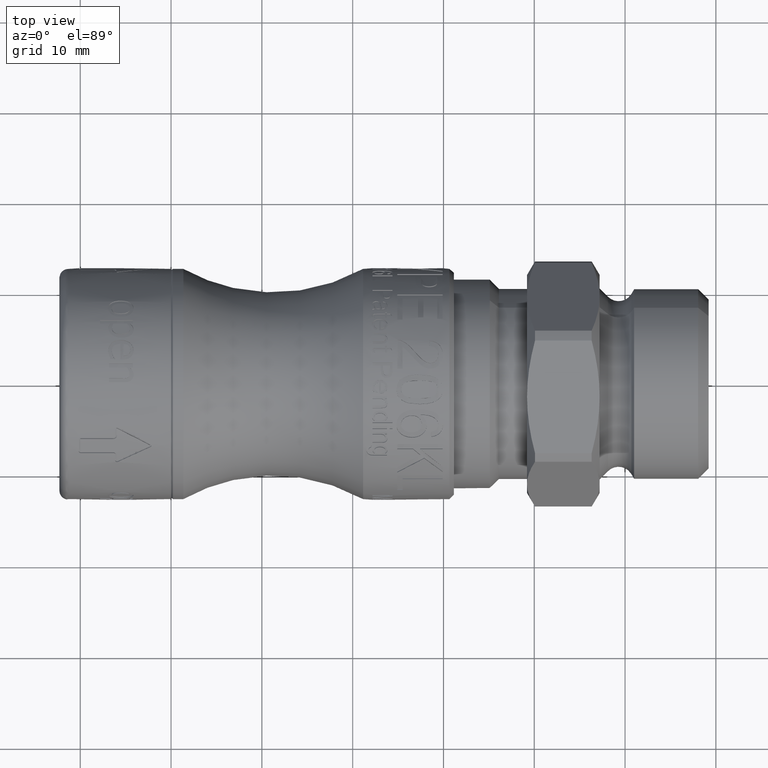
[diagram: clean part render]
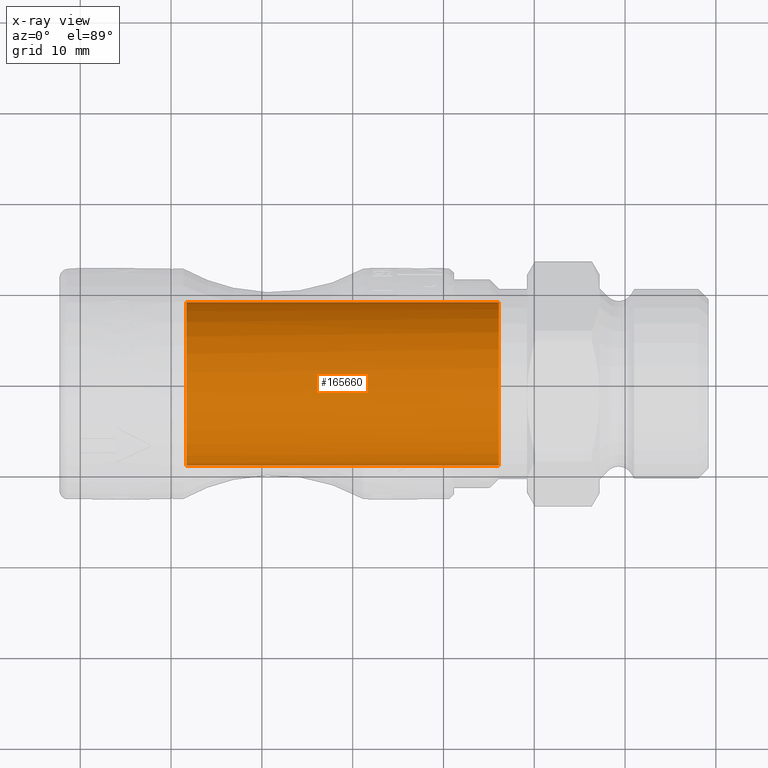
[diagram: x-ray — body ghosted, one internal face saturated and labeled with its STEP entity id]
A machine part, top view, then the same camera in x-ray: the body is ghosted and one INTERNAL B-rep face — a face not visible from any outside direction — is saturated and labeled: STEP entity #165660.
In plain terms, the highlighted cylindrical surface (bore or boss wall) has radius 9 mm, axis along (1, 0, 0).
Its self-contained STEP definition (entity closure, byte-faithful):
#165633=CARTESIAN_POINT('',(31.062500000000007,0.0,0.0));
#165634=DIRECTION('',(1.0,0.0,0.0));
#165635=DIRECTION('',(0.0,1.0,0.0));
#165636=AXIS2_PLACEMENT_3D('',#165633,#165634,#165635);
#165637=CYLINDRICAL_SURFACE('',#165636,9.000000000000002);
#165638=CARTESIAN_POINT('',(46.100000000000009,7.116004693287177,5.510215713120035));
#165639=VERTEX_POINT('',#165638);
#165640=CARTESIAN_POINT('',(46.100000000000009,0.0,0.0));
#165641=DIRECTION('',(-1.0,0.0,0.0));
#165642=DIRECTION('',(0.0,1.0,0.0));
#165643=AXIS2_PLACEMENT_3D('',#165640,#165641,#165642);
#165644=CIRCLE('',#165643,9.000000000000002);
#165645=EDGE_CURVE('',#165639,#165639,#165644,.T.);
#165646=ORIENTED_EDGE('',*,*,#165645,.T.);
#165647=EDGE_LOOP('',(#165646));
#165648=FACE_OUTER_BOUND('',#165647,.T.);
#165649=CARTESIAN_POINT('',(11.699999999999998,8.999999999999996,0.0));
#165650=VERTEX_POINT('',#165649);
#165651=CARTESIAN_POINT('',(11.699999999999998,0.0,0.0));
#165652=DIRECTION('',(1.0,0.0,0.0));
#165653=DIRECTION('',(0.0,1.0,0.0));
#165654=AXIS2_PLACEMENT_3D('',#165651,#165652,#165653);
#165655=CIRCLE('',#165654,8.999999999999996);
#165656=EDGE_CURVE('',#165650,#165650,#165655,.T.);
#165657=ORIENTED_EDGE('',*,*,#165656,.T.);
#165658=EDGE_LOOP('',(#165657));
#165659=FACE_BOUND('',#165658,.T.);
#165660=ADVANCED_FACE('',(#165648,#165659),#165637,.T.);